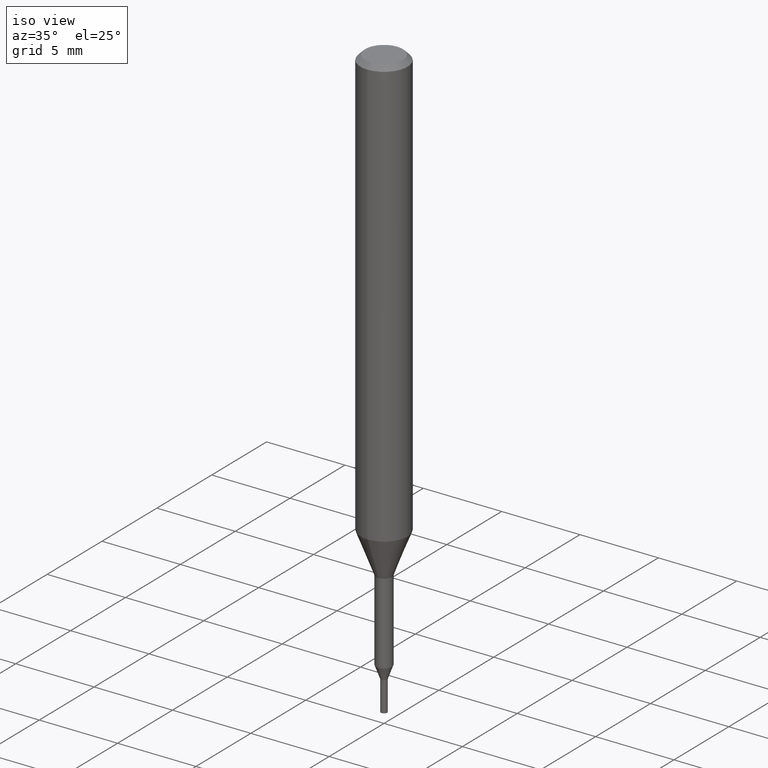
[diagram: clean part render]
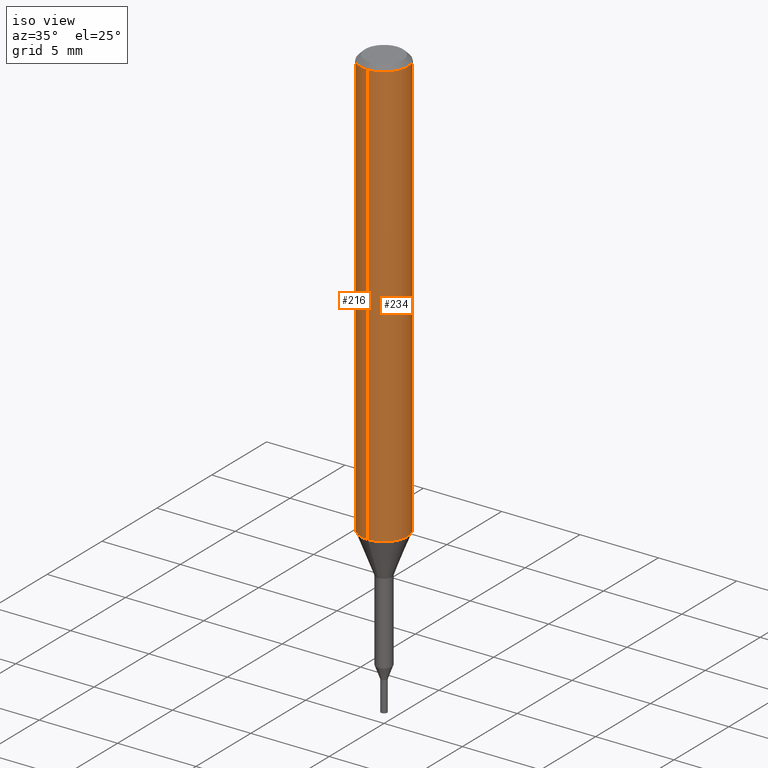
[diagram: same view with one multi-face feature highlighted, each face labeled with its STEP entity id]
A machine part, iso view. The highlighted faces form ONE feature: a constant-radius fillet chain: 2 tangent blend faces with common blend radius 1.5 mm. The faces share edges in the B-rep.
Their STEP definitions:
[1] entity #234 (Cylinder):
#116=VERTEX_POINT('',#294);
#122=VERTEX_POINT('',#301);
#128=EDGE_CURVE('',#176,#116,#309,.T.);
#130=EDGE_CURVE('',#136,#176,#311,.T.);
#136=VERTEX_POINT('',#318);
#176=VERTEX_POINT('',#361);
#204=EDGE_CURVE('',#116,#122,#392,.T.);
#232=EDGE_CURVE('',#136,#122,#424,.T.);
#234=ADVANCED_FACE('',(#426),#427,.T.);
#294=CARTESIAN_POINT('',(1.83690953073357E-016,-1.5,-27.395));
#301=CARTESIAN_POINT('',(1.83690953073357E-016,-1.5,-0.300000000000001));
#309=CIRCLE('',#501,1.5);
#311=LINE('',#504,#505);
#318=CARTESIAN_POINT('',(0.0,1.5,-0.300000000000001));
#361=CARTESIAN_POINT('',(0.0,1.5,-27.395));
#392=LINE('',#612,#613);
#424=CIRCLE('',#654,1.5);
#426=FACE_OUTER_BOUND('',#656,.T.);
#427=CYLINDRICAL_SURFACE('',#657,1.5);
#501=AXIS2_PLACEMENT_3D('',#743,#744,#745);
#504=CARTESIAN_POINT('',(-1.83690953073357E-016,1.5,-13.8475));
#505=VECTOR('',#746,1.0);
#612=CARTESIAN_POINT('',(1.83690953073357E-016,-1.5,-13.8475));
#613=VECTOR('',#831,1.0);
#654=AXIS2_PLACEMENT_3D('',#877,#878,#879);
#656=EDGE_LOOP('',(#881,#882,#883,#884));
#657=AXIS2_PLACEMENT_3D('',#885,#886,#887);
#743=CARTESIAN_POINT('',(0.0,0.0,-27.395));
#744=DIRECTION('',(0.0,0.0,-1.0));
#745=DIRECTION('',(0.0,1.0,0.0));
#746=DIRECTION('',(0.0,0.0,-1.0));
#831=DIRECTION('',(-0.0,-0.0,1.0));
#877=CARTESIAN_POINT('',(0.0,0.0,-0.300000000000001));
#878=DIRECTION('',(0.0,0.0,-1.0));
#879=DIRECTION('',(0.0,1.0,0.0));
#881=ORIENTED_EDGE('',*,*,#130,.F.);
#882=ORIENTED_EDGE('',*,*,#232,.T.);
#883=ORIENTED_EDGE('',*,*,#204,.F.);
#884=ORIENTED_EDGE('',*,*,#128,.F.);
#885=CARTESIAN_POINT('',(0.0,0.0,-13.8475));
#886=DIRECTION('',(-0.0,-0.0,1.0));
#887=DIRECTION('',(0.0,1.0,0.0));
[2] entity #216 (Cylinder):
#116=VERTEX_POINT('',#294);
#122=VERTEX_POINT('',#301);
#130=EDGE_CURVE('',#136,#176,#311,.T.);
#136=VERTEX_POINT('',#318);
#158=EDGE_CURVE('',#116,#176,#342,.T.);
#160=EDGE_CURVE('',#122,#136,#344,.T.);
#176=VERTEX_POINT('',#361);
#204=EDGE_CURVE('',#116,#122,#392,.T.);
#216=ADVANCED_FACE('',(#406),#407,.T.);
#294=CARTESIAN_POINT('',(1.83690953073357E-016,-1.5,-27.395));
#301=CARTESIAN_POINT('',(1.83690953073357E-016,-1.5,-0.300000000000001));
#311=LINE('',#504,#505);
#318=CARTESIAN_POINT('',(0.0,1.5,-0.300000000000001));
#342=CIRCLE('',#544,1.5);
#344=CIRCLE('',#547,1.5);
#361=CARTESIAN_POINT('',(0.0,1.5,-27.395));
#392=LINE('',#612,#613);
#406=FACE_OUTER_BOUND('',#630,.T.);
#407=CYLINDRICAL_SURFACE('',#631,1.5);
#504=CARTESIAN_POINT('',(-1.83690953073357E-016,1.5,-13.8475));
#505=VECTOR('',#746,1.0);
#544=AXIS2_PLACEMENT_3D('',#779,#780,#781);
#547=AXIS2_PLACEMENT_3D('',#782,#783,#784);
#612=CARTESIAN_POINT('',(1.83690953073357E-016,-1.5,-13.8475));
#613=VECTOR('',#831,1.0);
#630=EDGE_LOOP('',(#852,#853,#854,#855));
#631=AXIS2_PLACEMENT_3D('',#856,#857,#858);
#746=DIRECTION('',(0.0,0.0,-1.0));
#779=CARTESIAN_POINT('',(0.0,0.0,-27.395));
#780=DIRECTION('',(0.0,0.0,-1.0));
#781=DIRECTION('',(0.0,1.0,0.0));
#782=CARTESIAN_POINT('',(0.0,0.0,-0.300000000000001));
#783=DIRECTION('',(0.0,0.0,-1.0));
#784=DIRECTION('',(0.0,1.0,0.0));
#831=DIRECTION('',(-0.0,-0.0,1.0));
#852=ORIENTED_EDGE('',*,*,#130,.T.);
#853=ORIENTED_EDGE('',*,*,#158,.F.);
#854=ORIENTED_EDGE('',*,*,#204,.T.);
#855=ORIENTED_EDGE('',*,*,#160,.T.);
#856=CARTESIAN_POINT('',(0.0,0.0,-13.8475));
#857=DIRECTION('',(-0.0,-0.0,1.0));
#858=DIRECTION('',(0.0,1.0,0.0));